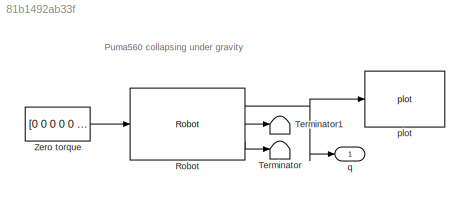
MODEL slx_81b1492ab33f
KIND model
CONFIG AbsTol = auto
CONFIG FixedStep = auto
CONFIG MaxStep = auto
CONFIG MinStep = auto
CONFIG RelTol = 1e-3
CONFIG SampleTimeConstraint = Unconstrained
CONFIG Solver = ode45
CONFIG SolverMode = Auto
CONFIG SolverName = ode45
CONFIG StartTime = 0.0
CONFIG StopTime = 5
BLOCK [Reference] Robot  REF=roblocks/Arm/Robot  (lib defined in mdl_2a292b13c81b, mdl_69400f8cfe22, +12 more)
  Ports = [1, 3]
  SourceBlock = roblocks/Arm/Robot
  q0 = [0 0 0 0 0 0]
  robot = p560.nofriction
BLOCK [Terminator] Terminator
BLOCK [Terminator] Terminator1
BLOCK [Constant] Zero torque
  Value = [0 0 0 0 0 0]'
BLOCK [Reference] plot  REF=roblocks/Arm/plot  (lib defined in mdl_2a292b13c81b, mdl_69400f8cfe22, +12 more)
  Ports = [1]
  SourceBlock = roblocks/Arm/plot
  fps = 25
  holdplot = on
  robot = p560
BLOCK [Outport] q
  IconDisplay = Port number
ANNOTATION (root): Puma560 collapsing under gravity
NET Robot:1 -> plot:1, q:1
LINE Robot:2 -> Terminator1:1
LINE Robot:3 -> Terminator:1
LINE Zero torque:1 -> Robot:1
note: NET lines group one-source signal fan-out (src -> all destinations, sorted); 1:1 wires keep LINE
